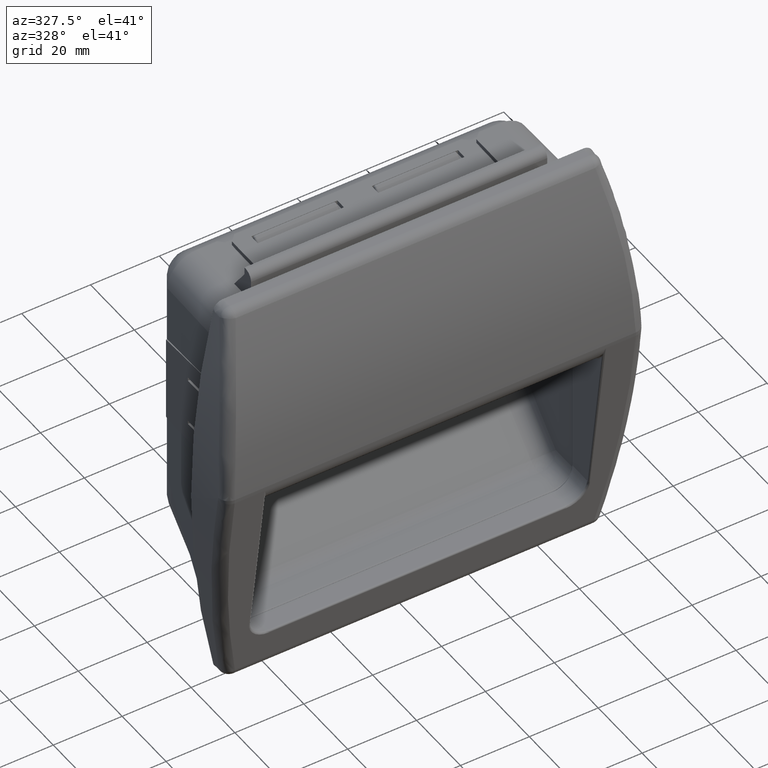
[diagram: clean part render]
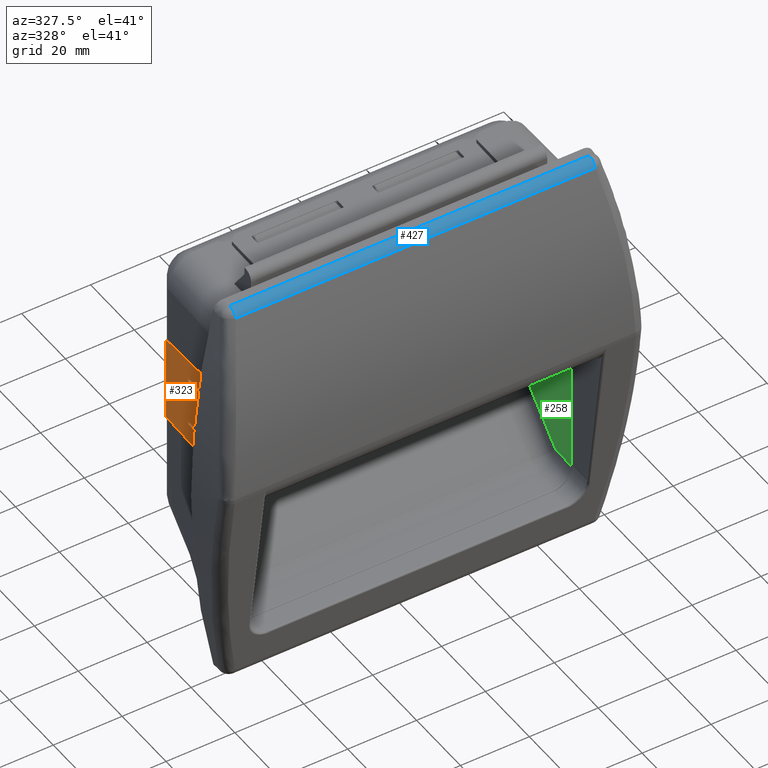
[diagram: same view with three faces highlighted in distinct colors, each labeled with its STEP entity id]
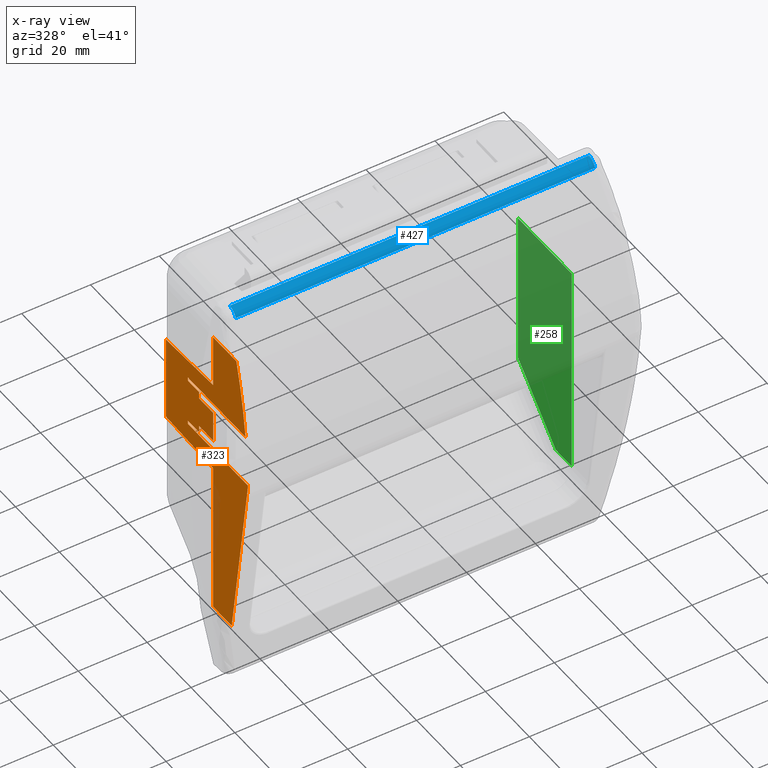
[diagram: x-ray of the same camera — body ghosted, the three highlighted faces saturated]
A machine part, auxiliary view with three faces highlighted in distinct colors.
The next image is the same camera in x-ray (body ghosted, the three faces saturated) — at least one of them is partly hidden behind the body in this view.
Their STEP definitions:

[orange] entity #323 — the highlighted planar face has unit normal (1, 0, 0).
#323=ADVANCED_FACE('',(#2600),#2599,.F.);
#2599=PLANE('',#9196);
#2600=FACE_OUTER_BOUND('',#9197,.T.);
#9193=CARTESIAN_POINT('',(-2.51350344491E+002,-1.60360877861E+001,5.35401878995E+001));
#9194=DIRECTION('',(1.00000000000E+000,-0.00000000000E+000,4.10796394202E-012));
#9195=DIRECTION('',(4.10796394202E-012,0.00000000000E+000,-1.00000000000E+000));
#9196=AXIS2_PLACEMENT_3D('',#9193,#9194,#9195);
#9197=EDGE_LOOP('',(#15869,#15870,#15871,#15872,#15873,#15874,#15875,#15876,#15877,#15878,#15879,#15880,#15881,#15882,#15883,#15884,#15885,#15886,#15887,#15888,#15889));
#15869=ORIENTED_EDGE('',*,*,#19036,.F.);
#15870=ORIENTED_EDGE('',*,*,#19037,.F.);
#15871=ORIENTED_EDGE('',*,*,#19038,.F.);
#15872=ORIENTED_EDGE('',*,*,#19039,.F.);
#15873=ORIENTED_EDGE('',*,*,#19040,.T.);
#15874=ORIENTED_EDGE('',*,*,#19041,.T.);
#15875=ORIENTED_EDGE('',*,*,#19042,.T.);
#15876=ORIENTED_EDGE('',*,*,#19043,.T.);
#15877=ORIENTED_EDGE('',*,*,#19044,.T.);
#15878=ORIENTED_EDGE('',*,*,#19045,.F.);
#15879=ORIENTED_EDGE('',*,*,#19046,.F.);
#15880=ORIENTED_EDGE('',*,*,#19047,.F.);
#15881=ORIENTED_EDGE('',*,*,#19048,.F.);
#15882=ORIENTED_EDGE('',*,*,#19049,.T.);
#15883=ORIENTED_EDGE('',*,*,#19050,.F.);
#15884=ORIENTED_EDGE('',*,*,#19051,.T.);
#15885=ORIENTED_EDGE('',*,*,#19052,.T.);
#15886=ORIENTED_EDGE('',*,*,#19053,.T.);
#15887=ORIENTED_EDGE('',*,*,#19054,.F.);
#15888=ORIENTED_EDGE('',*,*,#19055,.T.);
#15889=ORIENTED_EDGE('',*,*,#19056,.T.);
#19036=EDGE_CURVE('',#23194,#23195,#23196,.T.);
#19037=EDGE_CURVE('',#23202,#23194,#23203,.T.);
#19038=EDGE_CURVE('',#23209,#23202,#23210,.T.);
#19039=EDGE_CURVE('',#23216,#23209,#23217,.T.);
#19040=EDGE_CURVE('',#23216,#23223,#23224,.T.);
#19041=EDGE_CURVE('',#23223,#23230,#23231,.T.);
#19042=EDGE_CURVE('',#23230,#23237,#23238,.T.);
#19043=EDGE_CURVE('',#23237,#23244,#23245,.T.);
#19044=EDGE_CURVE('',#23244,#23251,#23252,.T.);
#19045=EDGE_CURVE('',#23258,#23251,#23259,.T.);
#19046=EDGE_CURVE('',#23265,#23258,#23266,.T.);
#19047=EDGE_CURVE('',#23272,#23265,#23273,.T.);
#19048=EDGE_CURVE('',#23279,#23272,#23280,.T.);
#19049=EDGE_CURVE('',#23279,#23286,#23287,.T.);
#19050=EDGE_CURVE('',#23293,#23286,#23294,.T.);
#19051=EDGE_CURVE('',#23293,#23300,#23301,.T.);
#19052=EDGE_CURVE('',#23300,#23307,#23308,.T.);
#19053=EDGE_CURVE('',#23307,#23314,#23315,.T.);
#19054=EDGE_CURVE('',#23321,#23314,#23322,.T.);
#19055=EDGE_CURVE('',#23321,#23328,#23329,.T.);
#19056=EDGE_CURVE('',#23328,#23195,#23335,.T.);
#23194=VERTEX_POINT('',#33929);
#23195=VERTEX_POINT('',#33930);
#23196=CIRCLE('',#33934,1.52500000000E+002);
#23202=VERTEX_POINT('',#33935);
#23203=LINE('',#33936,#33937);
#23209=VERTEX_POINT('',#33939);
#23210=LINE('',#33940,#33941);
#23216=VERTEX_POINT('',#33943);
#23217=LINE('',#33944,#33945);
#23223=VERTEX_POINT('',#33947);
#23224=LINE('',#33948,#33949);
#23230=VERTEX_POINT('',#33951);
#23231=LINE('',#33952,#33953);
#23237=VERTEX_POINT('',#33955);
#23238=LINE('',#33956,#33957);
#23244=VERTEX_POINT('',#33959);
#23245=LINE('',#33960,#33961);
#23251=VERTEX_POINT('',#33963);
#23252=LINE('',#33964,#33965);
#23258=VERTEX_POINT('',#33967);
#23259=LINE('',#33968,#33969);
#23265=VERTEX_POINT('',#33971);
#23266=LINE('',#33972,#33973);
#23272=VERTEX_POINT('',#33975);
#23273=LINE('',#33976,#33977);
#23279=VERTEX_POINT('',#33979);
#23280=CIRCLE('',#33983,1.52500000000E+002);
#23286=VERTEX_POINT('',#33984);
#23287=LINE('',#33985,#33986);
#23293=VERTEX_POINT('',#33988);
#23294=LINE('',#33989,#33990);
#23300=VERTEX_POINT('',#33992);
#23301=LINE('',#33993,#33994);
#23307=VERTEX_POINT('',#33996);
#23308=LINE('',#33997,#33998);
#23314=VERTEX_POINT('',#34000);
#23315=LINE('',#34001,#34002);
#23321=VERTEX_POINT('',#34004);
#23322=(BOUNDED_CURVE() B_SPLINE_CURVE(1,(#34005,#34006),.UNSPECIFIED.,.F.,.F.) B_SPLINE_CURVE_WITH_KNOTS((2,2),(0.00000000000E+000,1.00000000000E+000),.UNSPECIFIED.) CURVE() GEOMETRIC_REPRESENTATION_ITEM() RATIONAL_B_SPLINE_CURVE((1.00000000000E+000,1.00000000000E+000)) REPRESENTATION_ITEM('') );
#23328=VERTEX_POINT('',#34007);
#23329=(BOUNDED_CURVE() B_SPLINE_CURVE(1,(#34008,#34009),.UNSPECIFIED.,.F.,.F.) B_SPLINE_CURVE_WITH_KNOTS((2,2),(0.00000000000E+000,1.00000000000E+000),.UNSPECIFIED.) CURVE() GEOMETRIC_REPRESENTATION_ITEM() RATIONAL_B_SPLINE_CURVE((1.00000000000E+000,1.00000000000E+000)) REPRESENTATION_ITEM('') );
#23335=LINE('',#34010,#34011);
#33929=CARTESIAN_POINT('',(-2.51350344491E+002,-1.22911234932E+001,8.30000000000E+000));
#33930=CARTESIAN_POINT('',(-2.51350344491E+002,-1.23055343510E+001,7.50931367449E+000));
#33931=CARTESIAN_POINT('',(-2.51350344491E+002,1.40175836261E+002,5.12569957725E+000));
#33932=DIRECTION('',(1.00000000000E+000,0.00000000000E+000,4.10796394202E-012));
#33933=DIRECTION('',(-4.10796394202E-012,-0.00000000000E+000,1.00000000000E+000));
#33934=AXIS2_PLACEMENT_3D('',#33931,#33932,#33933);
#33935=CARTESIAN_POINT('',(-2.51350344491E+002,1.50036260000E+001,8.30000000000E+000));
#33936=CARTESIAN_POINT('',(-2.51350344491E+002,1.50036260000E+001,8.30000000000E+000));
#33937=VECTOR('',#33938,2.72947494932E+001);
#33938=DIRECTION('',(0.00000000000E+000,-1.00000000000E+000,0.00000000000E+000));
#33939=CARTESIAN_POINT('',(-2.51350344491E+002,1.50036260000E+001,9.29999999998E+000));
#33940=CARTESIAN_POINT('',(-2.51350344491E+002,1.50036260000E+001,9.29999999998E+000));
#33941=VECTOR('',#33942,9.99999999976E-001);
#33942=DIRECTION('',(4.09272615808E-012,0.00000000000E+000,-1.00000000000E+000));
#33943=CARTESIAN_POINT('',(-2.51350344491E+002,9.89688218386E+000,9.30000000000E+000));
#33944=CARTESIAN_POINT('',(-2.51350344491E+002,9.89688218385E+000,9.29999999998E+000));
#33945=VECTOR('',#33946,5.10674381617E+000);
#33946=DIRECTION('',(0.00000000000E+000,1.00000000000E+000,0.00000000000E+000));
#33947=CARTESIAN_POINT('',(-2.51350344491E+002,9.89688218469E+000,1.13000000000E+001));
#33948=CARTESIAN_POINT('',(-2.51350344491E+002,9.89688218386E+000,9.30000000000E+000));
#33949=VECTOR('',#33950,1.99999999998E+000);
#33950=DIRECTION('',(-4.10693701274E-012,-1.39515066168E-011,1.00000000000E+000));
#33951=CARTESIAN_POINT('',(-2.51350344491E+002,3.45000000000E+000,1.13000000000E+001));
#33952=CARTESIAN_POINT('',(-2.51350344491E+002,9.89688218469E+000,1.13000000000E+001));
#33953=VECTOR('',#33954,6.44688218469E+000);
#33954=DIRECTION('',(0.00000000000E+000,-1.00000000000E+000,0.00000000000E+000));
#33955=CARTESIAN_POINT('',(-2.51350344491E+002,3.45000000000E+000,2.03000000000E+001));
#33956=CARTESIAN_POINT('',(-2.51350344491E+002,3.45000000000E+000,1.13000000000E+001));
#33957=VECTOR('',#33958,9.00000000000E+000);
#33958=DIRECTION('',(0.00000000000E+000,0.00000000000E+000,1.00000000000E+000));
#33959=CARTESIAN_POINT('',(-2.51350344491E+002,9.89688218371E+000,2.03000000000E+001));
#33960=CARTESIAN_POINT('',(-2.51350344491E+002,3.45000000000E+000,2.03000000000E+001));
#33961=VECTOR('',#33962,6.44688218371E+000);
#33962=DIRECTION('',(0.00000000000E+000,1.00000000000E+000,0.00000000000E+000));
#33963=CARTESIAN_POINT('',(-2.51350344491E+002,9.89688218375E+000,2.23000000000E+001));
#33964=CARTESIAN_POINT('',(-2.51350344491E+002,9.89688218371E+000,2.03000000000E+001));
#33965=VECTOR('',#33966,2.00000000000E+000);
#33966=DIRECTION('',(-4.10693701269E-012,-1.39515066166E-011,1.00000000000E+000));
#33967=CARTESIAN_POINT('',(-2.51350344491E+002,1.50036260000E+001,2.23000000000E+001));
#33968=CARTESIAN_POINT('',(-2.51350344491E+002,1.50036260000E+001,2.23000000000E+001));
#33969=VECTOR('',#33970,5.10674381626E+000);
#33970=DIRECTION('',(0.00000000000E+000,-1.00000000000E+000,0.00000000000E+000));
#33971=CARTESIAN_POINT('',(-2.51350344491E+002,1.50036260000E+001,2.33000000000E+001));
#33972=CARTESIAN_POINT('',(-2.51350344491E+002,1.50036260000E+001,2.33000000000E+001));
#33973=VECTOR('',#33974,1.00000000000E+000);
#33974=DIRECTION('',(4.12114786741E-012,0.00000000000E+000,-1.00000000000E+000));
#33975=CARTESIAN_POINT('',(-2.51350344491E+002,-1.12373230218E+001,2.33000000000E+001));
#33976=CARTESIAN_POINT('',(-2.51350344491E+002,-1.12373230218E+001,2.33000000000E+001));
#33977=VECTOR('',#33978,2.62409490219E+001);
#33978=DIRECTION('',(0.00000000000E+000,1.00000000000E+000,0.00000000000E+000));
#33979=CARTESIAN_POINT('',(-2.51350344491E+002,-7.07293244651E+000,4.47999999995E+001));
#33980=CARTESIAN_POINT('',(-2.51350344491E+002,1.40175836261E+002,5.12569957725E+000));
#33981=DIRECTION('',(1.00000000000E+000,0.00000000000E+000,4.10796394202E-012));
#33982=DIRECTION('',(-4.10796394202E-012,-0.00000000000E+000,1.00000000000E+000));
#33983=AXIS2_PLACEMENT_3D('',#33980,#33981,#33982);
#33984=CARTESIAN_POINT('',(-2.51350344491E+002,3.50000000091E+000,4.47999999995E+001));
#33985=CARTESIAN_POINT('',(-2.51350344491E+002,-7.07293244649E+000,4.47999999995E+001));
#33986=VECTOR('',#33987,1.05729324474E+001);
#33987=DIRECTION('',(0.00000000000E+000,1.00000000000E+000,0.00000000000E+000));
#33988=CARTESIAN_POINT('',(-2.51350344491E+002,3.50000000005E+000,2.93000000000E+001));
#33989=CARTESIAN_POINT('',(-2.51350344491E+002,3.50000000091E+000,2.93000000000E+001));
#33990=VECTOR('',#33991,1.54999999994E+001);
#33991=DIRECTION('',(0.00000000000E+000,0.00000000000E+000,1.00000000000E+000));
#33992=CARTESIAN_POINT('',(-2.51350344491E+002,2.50000000000E+001,2.83000000000E+001));
#33993=CARTESIAN_POINT('',(-2.51350344491E+002,3.50000000005E+000,2.93000000000E+001));
#33994=VECTOR('',#33995,2.15232432500E+001);
#33995=DIRECTION('',(0.00000000000E+000,9.98920086078E-001,-4.64613993511E-002));
#33996=CARTESIAN_POINT('',(-2.51350344491E+002,2.50000000000E+001,3.29999999998E+000));
#33997=CARTESIAN_POINT('',(-2.51350344491E+002,2.50000000000E+001,2.83000000000E+001));
#33998=VECTOR('',#33999,2.50000000001E+001);
#33999=DIRECTION('',(0.00000000000E+000,0.00000000000E+000,-1.00000000000E+000));
#34000=CARTESIAN_POINT('',(-2.51350344491E+002,3.50000000091E+000,2.29999999998E+000));
#34001=CARTESIAN_POINT('',(-2.51350344491E+002,2.50000000000E+001,3.29999999998E+000));
#34002=VECTOR('',#34003,2.15232432491E+001);
#34003=DIRECTION('',(0.00000000000E+000,-9.98920086078E-001,-4.64613993527E-002));
#34004=CARTESIAN_POINT('',(-2.51350344491E+002,3.50000000091E+000,-4.26018790006E+001));
#34005=CARTESIAN_POINT('',(-2.51350344491E+002,3.50000000091E+000,-4.26018790006E+001));
#34006=CARTESIAN_POINT('',(-2.51350344491E+002,3.50000000091E+000,2.29999999998E+000));
#34007=CARTESIAN_POINT('',(-2.51350344491E+002,-4.95231672591E+000,-4.26018790006E+001));
#34008=CARTESIAN_POINT('',(-2.51350344491E+002,3.50000000091E+000,-4.26018790006E+001));
#34009=CARTESIAN_POINT('',(-2.51350344491E+002,-4.95231672592E+000,-4.26018790006E+001));
#34010=CARTESIAN_POINT('',(-2.51350344491E+002,-4.95231672591E+000,-4.26018790006E+001));
#34011=VECTOR('',#34012,5.06478177295E+001);
#34012=DIRECTION('',(-4.06394646250E-012,-1.45183306107E-001,9.89404774411E-001));

[blue] entity #427 — the highlighted cylindrical surface (edge-blend (fillet) strip) has radius 3 mm, axis along (-1, 0, 0).
#427=ADVANCED_FACE('',(#3645),#3644,.T.);
#3644=CYLINDRICAL_SURFACE('',#9907,3.00000000000E+000);
#3645=FACE_OUTER_BOUND('',#9908,.T.);
#9904=CARTESIAN_POINT('',(-1.19850034449E+003,-2.89099623730E+000,5.64665355538E+001));
#9905=DIRECTION('',(-1.00000000000E+000,-0.00000000000E+000,0.00000000000E+000));
#9906=DIRECTION('',(0.00000000000E+000,-0.00000000000E+000,1.00000000000E+000));
#9907=AXIS2_PLACEMENT_3D('',#9904,#9905,#9906);
#9908=EDGE_LOOP('',(#16436,#16437,#16438,#16439));
#16436=ORIENTED_EDGE('',*,*,#19429,.F.);
#16437=ORIENTED_EDGE('',*,*,#19430,.T.);
#16438=ORIENTED_EDGE('',*,*,#19431,.F.);
#16439=ORIENTED_EDGE('',*,*,#19427,.F.);
#19427=EDGE_CURVE('',#25804,#25832,#25833,.T.);
#19429=EDGE_CURVE('',#25845,#25804,#25846,.T.);
#19430=EDGE_CURVE('',#25845,#25852,#25853,.T.);
#19431=EDGE_CURVE('',#25832,#25852,#25859,.T.);
#25804=VERTEX_POINT('',#35531);
#25832=VERTEX_POINT('',#35557);
#25833=CIRCLE('',#35561,3.00000000000E+000);
#25845=VERTEX_POINT('',#35566);
#25846=LINE('',#35567,#35568);
#25852=VERTEX_POINT('',#35570);
#25853=CIRCLE('',#35574,3.00000000000E+000);
#25859=LINE('',#35575,#35576);
#35531=CARTESIAN_POINT('',(-2.50686074209E+002,-5.71468372083E+000,5.74798415271E+001));
#35557=CARTESIAN_POINT('',(-2.50686074209E+002,-2.94335345652E+000,5.94660786393E+001));
#35558=CARTESIAN_POINT('',(-2.50686074209E+002,-2.89099623730E+000,5.64665355538E+001));
#35559=DIRECTION('',(-1.00000000000E+000,-6.68310124663E-015,-1.86231896781E-014));
#35560=DIRECTION('',(1.86231896781E-014,-0.00000000000E+000,-1.00000000000E+000));
#35561=AXIS2_PLACEMENT_3D('',#35558,#35559,#35560);
#35566=CARTESIAN_POINT('',(-1.46314614773E+002,-5.71468372083E+000,5.74798415271E+001));
#35567=CARTESIAN_POINT('',(-1.46314614773E+002,-5.71468372083E+000,5.74798415271E+001));
#35568=VECTOR('',#35569,1.04371459436E+002);
#35569=DIRECTION('',(-1.00000000000E+000,0.00000000000E+000,0.00000000000E+000));
#35570=CARTESIAN_POINT('',(-1.46314614773E+002,-2.94335345652E+000,5.94660786393E+001));
#35571=CARTESIAN_POINT('',(-1.46314614773E+002,-2.89099623730E+000,5.64665355538E+001));
#35572=DIRECTION('',(-1.00000000000E+000,6.68310124663E-015,1.86231896781E-014));
#35573=DIRECTION('',(-1.86231896781E-014,-0.00000000000E+000,-1.00000000000E+000));
#35574=AXIS2_PLACEMENT_3D('',#35571,#35572,#35573);
#35575=CARTESIAN_POINT('',(-2.50686074209E+002,-2.94335345652E+000,5.94660786393E+001));
#35576=VECTOR('',#35577,1.04371459436E+002);
#35577=DIRECTION('',(1.00000000000E+000,0.00000000000E+000,0.00000000000E+000));

[green] entity #258 — the highlighted planar face has unit normal (1, 0, 0).
#258=ADVANCED_FACE('',(#1947),#1946,.F.);
#1946=PLANE('',#8621);
#1947=FACE_OUTER_BOUND('',#8622,.T.);
#8618=CARTESIAN_POINT('',(4.93500000000E+001,3.24500000000E+001,-5.03479331000E+001));
#8619=DIRECTION('',(1.00000000000E+000,0.00000000000E+000,-0.00000000000E+000));
#8620=DIRECTION('',(0.00000000000E+000,0.00000000000E+000,1.00000000000E+000));
#8621=AXIS2_PLACEMENT_3D('',#8618,#8619,#8620);
#8622=EDGE_LOOP('',(#15550,#15551,#15552,#15553,#15554));
#15550=ORIENTED_EDGE('',*,*,#18925,.F.);
#15551=ORIENTED_EDGE('',*,*,#18793,.T.);
#15552=ORIENTED_EDGE('',*,*,#18800,.T.);
#15553=ORIENTED_EDGE('',*,*,#18803,.T.);
#15554=ORIENTED_EDGE('',*,*,#18857,.F.);
#18793=EDGE_CURVE('',#21610,#21603,#21611,.T.);
#18800=EDGE_CURVE('',#21603,#21649,#21656,.T.);
#18803=EDGE_CURVE('',#21649,#21674,#21675,.T.);
#18857=EDGE_CURVE('',#22034,#21674,#22035,.T.);
#18925=EDGE_CURVE('',#21610,#22034,#22475,.T.);
#21603=VERTEX_POINT('',#32916);
#21610=VERTEX_POINT('',#32921);
#21611=LINE('',#32922,#32923);
#21649=VERTEX_POINT('',#32961);
#21656=LINE('',#32966,#32967);
#21674=VERTEX_POINT('',#32977);
#21675=LINE('',#32978,#32979);
#22034=VERTEX_POINT('',#33207);
#22035=LINE('',#33208,#33209);
#22475=LINE('',#33454,#33455);
#32916=CARTESIAN_POINT('',(4.93500000000E+001,3.00000000000E+001,-2.67986260634E+001));
#32921=CARTESIAN_POINT('',(4.93500000000E+001,3.00000000000E+001,1.84000000000E+001));
#32922=CARTESIAN_POINT('',(4.93500000000E+001,3.00000000000E+001,1.84000000000E+001));
#32923=VECTOR('',#32924,4.51986260634E+001);
#32924=DIRECTION('',(0.00000000000E+000,0.00000000000E+000,-1.00000000000E+000));
#32961=CARTESIAN_POINT('',(4.93500000000E+001,1.27005050634E+001,-4.40981210000E+001));
#32966=CARTESIAN_POINT('',(4.93500000000E+001,3.00000000000E+001,-2.67986260634E+001));
#32967=VECTOR('',#32968,2.44651803616E+001);
#32968=DIRECTION('',(0.00000000000E+000,-7.07106781187E-001,-7.07106781187E-001));
#32977=CARTESIAN_POINT('',(4.93500000000E+001,5.50000000000E+000,-4.40981210000E+001));
#32978=CARTESIAN_POINT('',(4.93500000000E+001,1.27005050634E+001,-4.40981210000E+001));
#32979=VECTOR('',#32980,7.20050506339E+000);
#32980=DIRECTION('',(0.00000000000E+000,-1.00000000000E+000,0.00000000000E+000));
#33207=CARTESIAN_POINT('',(4.93500000000E+001,5.50000000000E+000,1.84000000000E+001));
#33208=CARTESIAN_POINT('',(4.93500000000E+001,5.50000000000E+000,1.84000000000E+001));
#33209=VECTOR('',#33210,6.24981210000E+001);
#33210=DIRECTION('',(0.00000000000E+000,3.54571484981E-014,-1.00000000000E+000));
#33454=CARTESIAN_POINT('',(4.93500000000E+001,3.00000000000E+001,1.84000000000E+001));
#33455=VECTOR('',#33456,2.45000000000E+001);
#33456=DIRECTION('',(0.00000000000E+000,-1.00000000000E+000,0.00000000000E+000));